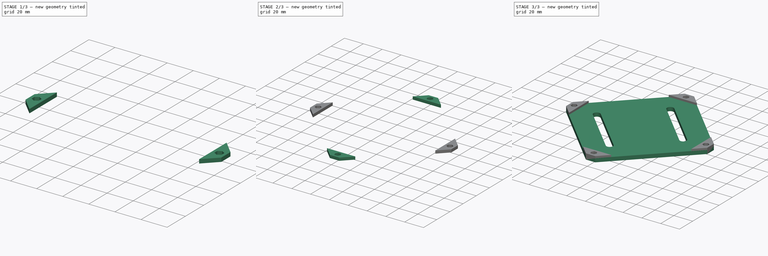
[diagram: build sequence overview — one tinted view per stage of 3, left to right]
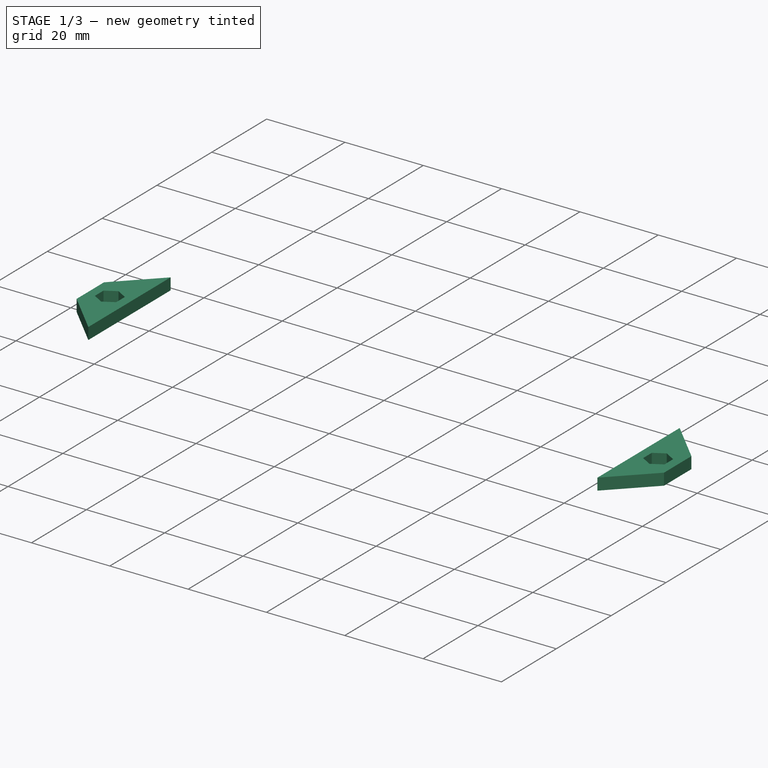
[diagram: stage 1 of 3 — iso view after this stage's code; geometry added in this stage tinted green]
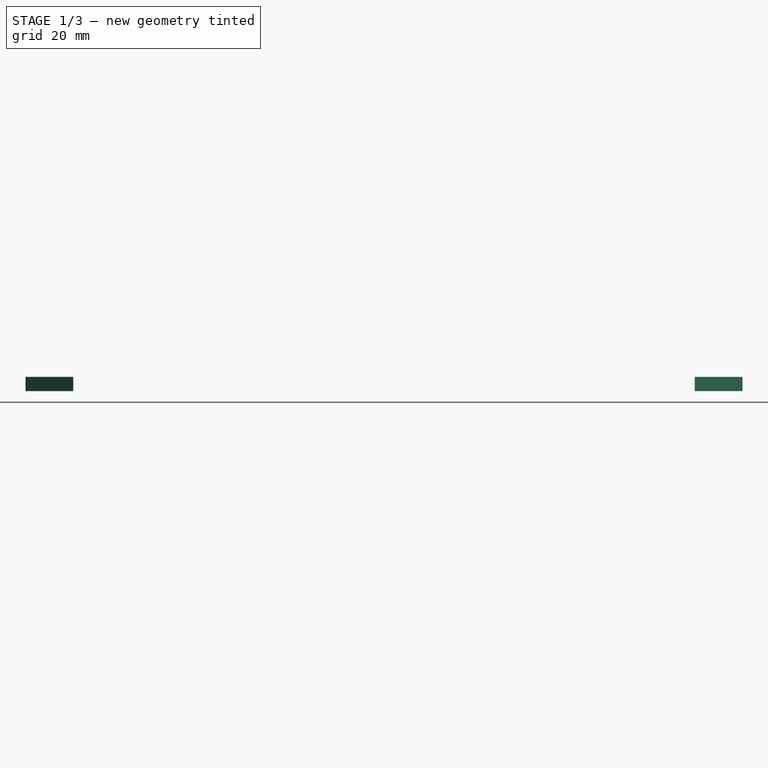
[diagram: stage 1 of 3 — front view after this stage's code; geometry added in this stage tinted green]
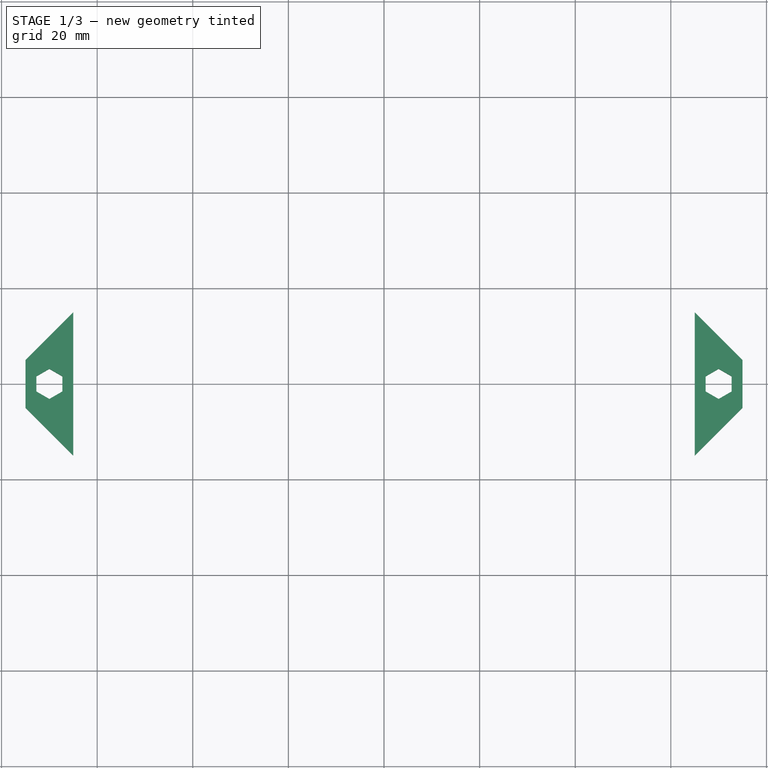
[diagram: stage 1 of 3 — top view after this stage's code; geometry added in this stage tinted green]
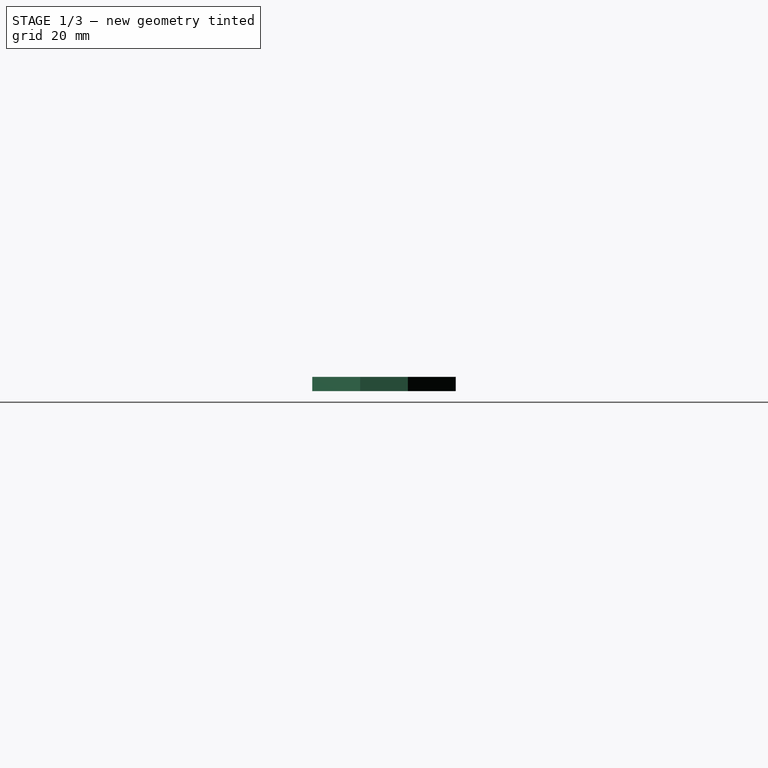
[diagram: stage 1 of 3 — right view after this stage's code; geometry added in this stage tinted green]
FCSTD DOCUMENT  (FreeCAD 0.16R6698 (Git))
Label: body-bottom-reversed
License: All rights reserved
LicenseURL: http://en.wikipedia.org/wiki/All_rights_reserved
objects: Part::Extrusion×5, Sketcher::SketchObject×2, Part::MultiFuse×1
note: 8 computed .brp shape members not serialized (recipe doc carries the construction recipe); baked Part::Feature solids carry a one-line shape summary decoded from their .brp

FEATURE [Part::Extrusion] Extrude003
  Base = -> Sketch001
  Dir = (0,0,3)
  Placement = pos=(-75,0,3) rot=(0,0,1;1.5708rad)
  Solid = true
FEATURE [Part::Extrusion] Extrude004
  Base = -> Sketch001
  Dir = (0,0,3)
  Placement = pos=(75,0,3) rot=(0,0,-1;1.5708rad)
  Solid = true
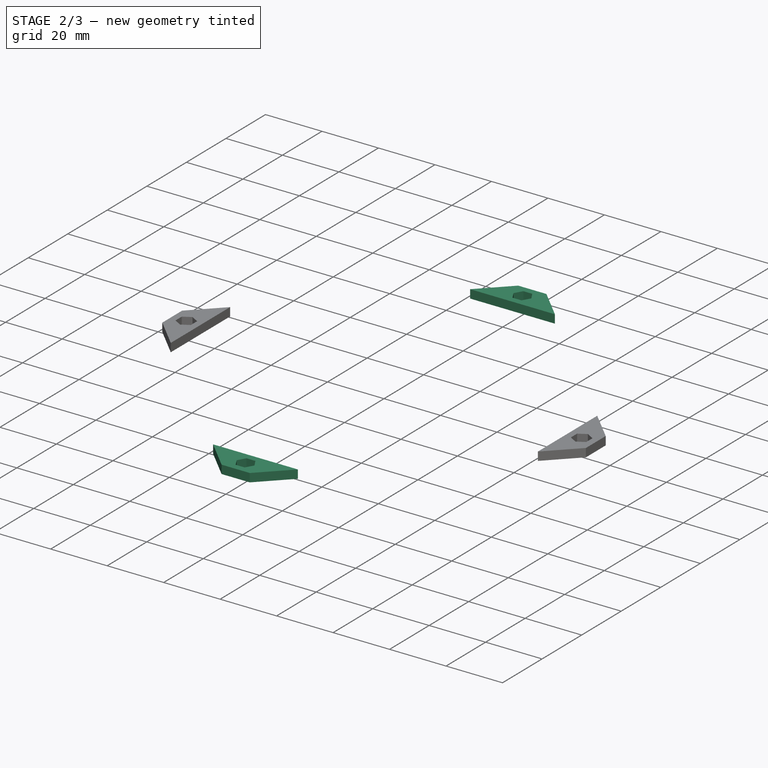
[diagram: stage 2 of 3 — iso view after this stage's code; geometry added in this stage tinted green]
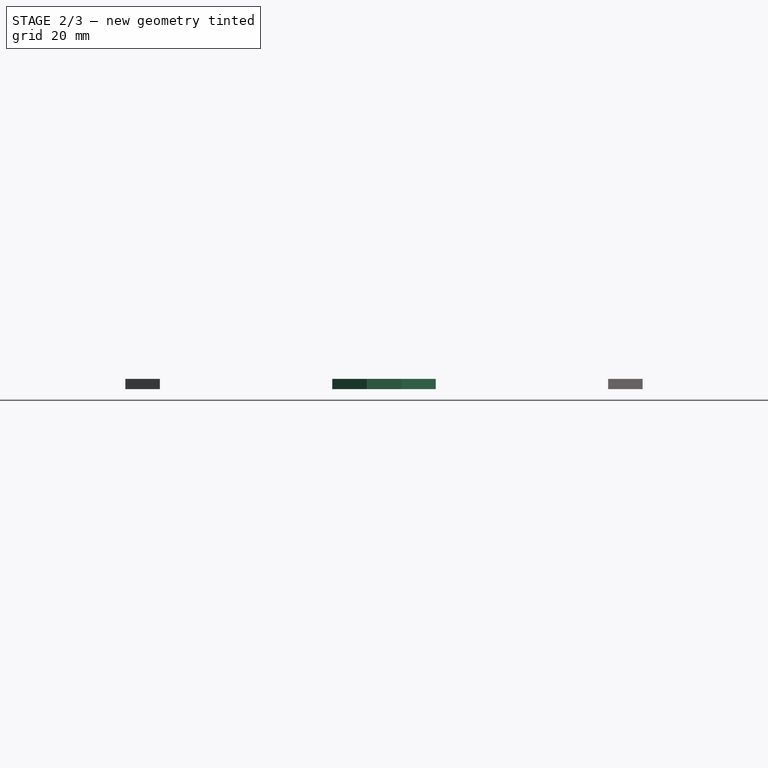
[diagram: stage 2 of 3 — front view after this stage's code; geometry added in this stage tinted green]
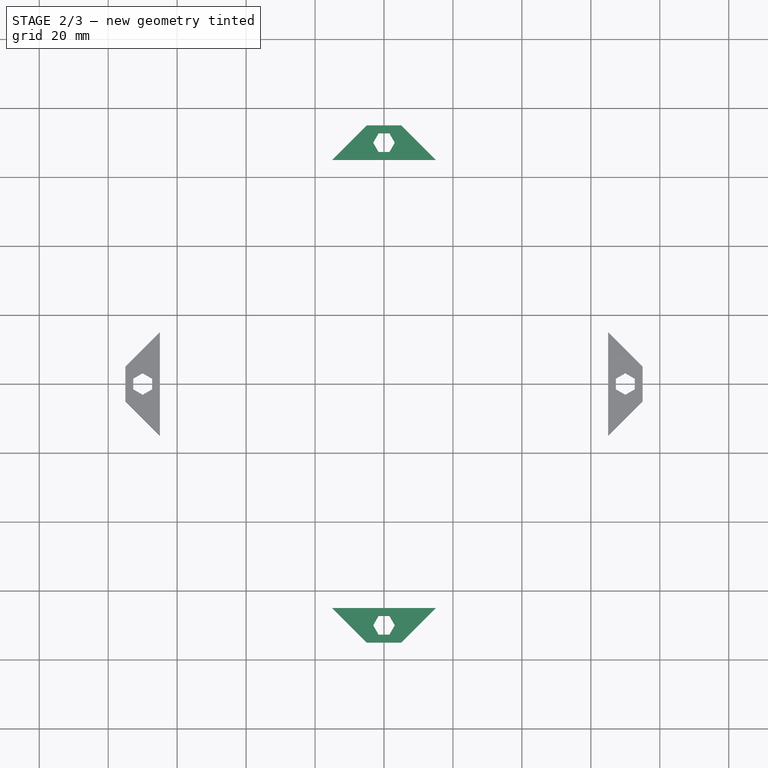
[diagram: stage 2 of 3 — top view after this stage's code; geometry added in this stage tinted green]
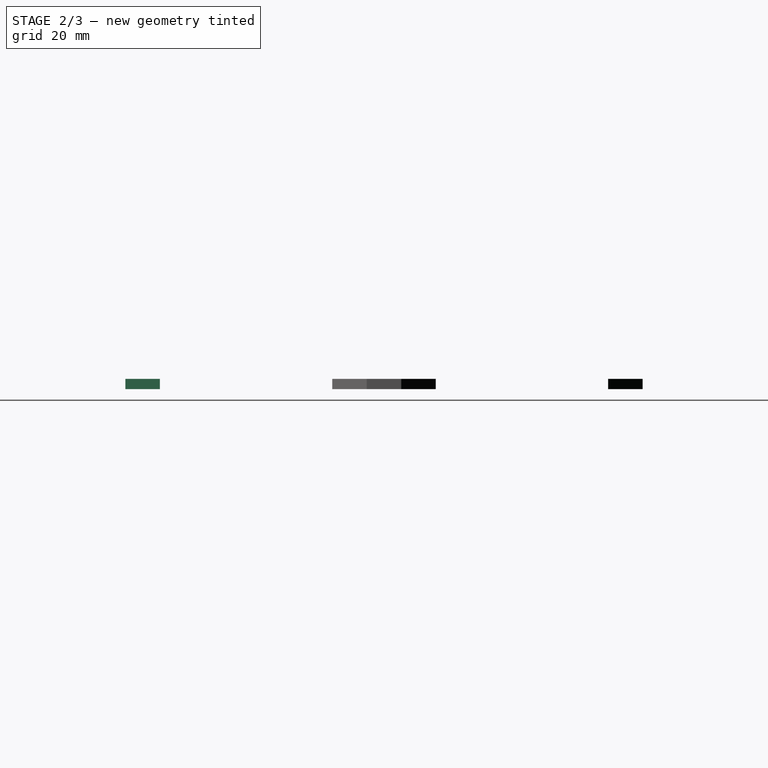
[diagram: stage 2 of 3 — right view after this stage's code; geometry added in this stage tinted green]
FEATURE [Sketcher::SketchObject] Sketch001
  sketch-geometry (11):
    g0: LineSegment StartX=-5 StartY=0 StartZ=0 EndX=5 EndY=0 EndZ=0
    g1: LineSegment StartX=5 StartY=0 StartZ=0 EndX=15 EndY=-10 EndZ=0
    g2: LineSegment StartX=15 StartY=-10 StartZ=0 EndX=-15 EndY=-10 EndZ=0
    g3: LineSegment StartX=-15 StartY=-10 StartZ=0 EndX=-5 EndY=0 EndZ=0
    g4: LineSegment StartX=1.575 StartY=-7.72798 StartZ=0 EndX=3.15 EndY=-5 EndZ=0
    g5: LineSegment StartX=3.15 StartY=-5 StartZ=0 EndX=1.575 EndY=-2.27202 EndZ=0
    g6: LineSegment StartX=1.575 StartY=-2.27202 StartZ=0 EndX=-1.575 EndY=-2.27202 EndZ=0
    g7: LineSegment StartX=-1.575 StartY=-2.27202 StartZ=0 EndX=-3.15 EndY=-5 EndZ=0
    g8: LineSegment StartX=-3.15 StartY=-5 StartZ=0 EndX=-1.575 EndY=-7.72798 EndZ=0
    g9: LineSegment StartX=-1.575 StartY=-7.72798 StartZ=0 EndX=1.575 EndY=-7.72798 EndZ=0
    g10: Circle [constr] CenterX=0 CenterY=-5 CenterZ=0 NormalX=0 NormalY=0 NormalZ=1 Radius=3.15
  constraints (29):
    c: Coincident(g0,g1)
    c: Coincident(g1,g2)
    c: Coincident(g2,g3)
    c: Coincident(g3,g0)
    c: Horizontal(g0)
    c: Horizontal(g2)
    c: PointOnObject(g0,g-1)
    c: Symmetric(g0,g0,g-2)
    c: Angle(g2,g3) = 0.785398
    c: Angle(g1,g2) = 0.785398
    c: DistanceX(g0,g0) = 10
    c: DistanceY(g1,g0) = 10
    c: Coincident(g4,g5)
    c: Coincident(g5,g6)
    c: Coincident(g6,g7)
    c: Coincident(g7,g8)
    c: Coincident(g8,g9)
    c: Coincident(g9,g4)
    c: Equal(g4, g5-g9) x5
    c: PointOnObject(g4,g10)
    c: PointOnObject(g5,g10)
    c: PointOnObject(g6,g10)
    c: PointOnObject(g7,g10)
    c: PointOnObject(g8,g10)
    c: PointOnObject(g9,g10)
    c: PointOnObject(g10,g-2)
    c: Horizontal(g9)
    c: DistanceY(g10,g-1) = 5
    c: Radius(g10) = 3.15
FEATURE [Part::Extrusion] Extrude001
  Base = -> Sketch001
  Dir = (0,0,3)
  Placement = pos=(0,75,3) rot=(0,0,1;0rad)
  Solid = true
FEATURE [Part::Extrusion] Extrude002
  Base = -> Sketch001
  Dir = (0,0,3)
  Placement = pos=(0,-75,3) rot=(0,0,1;3.14159rad)
  Solid = true
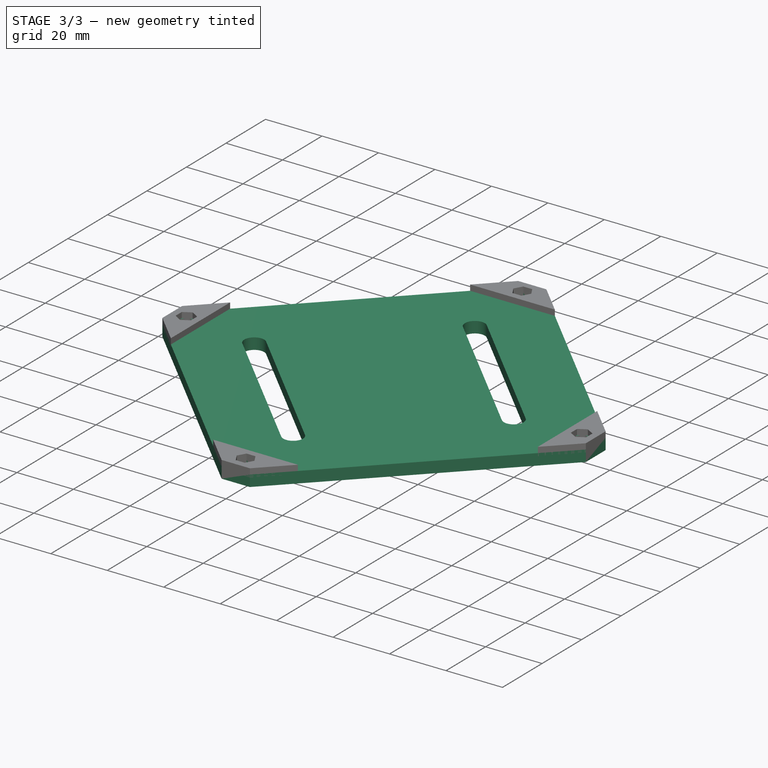
[diagram: stage 3 of 3 — iso view after this stage's code; geometry added in this stage tinted green]
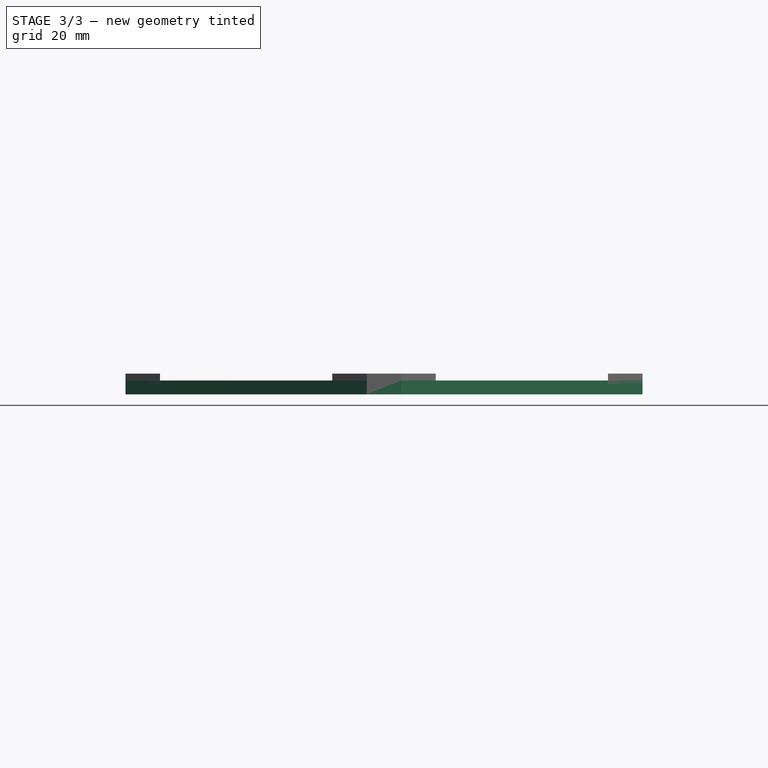
[diagram: stage 3 of 3 — front view after this stage's code; geometry added in this stage tinted green]
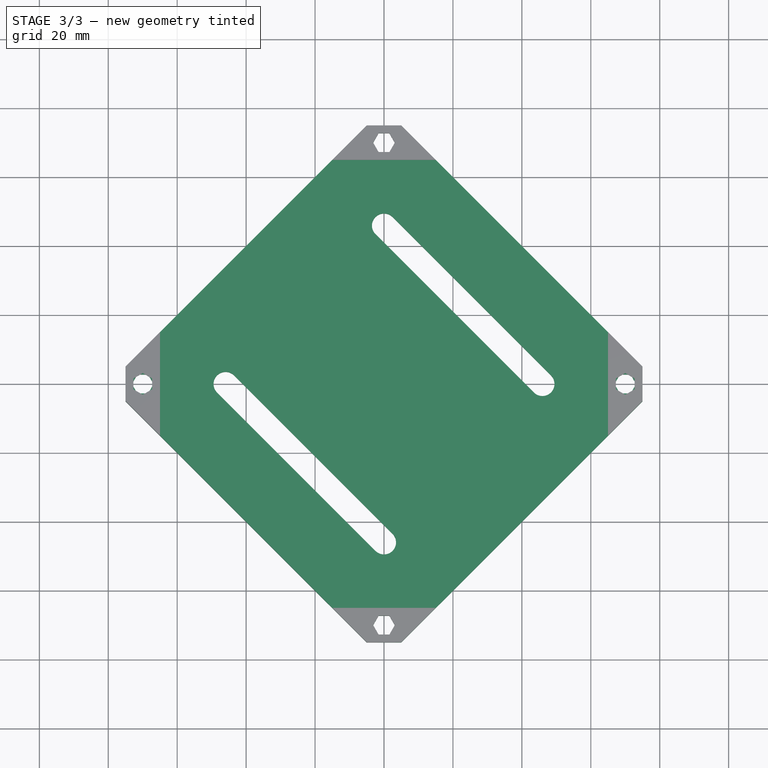
[diagram: stage 3 of 3 — top view after this stage's code; geometry added in this stage tinted green]
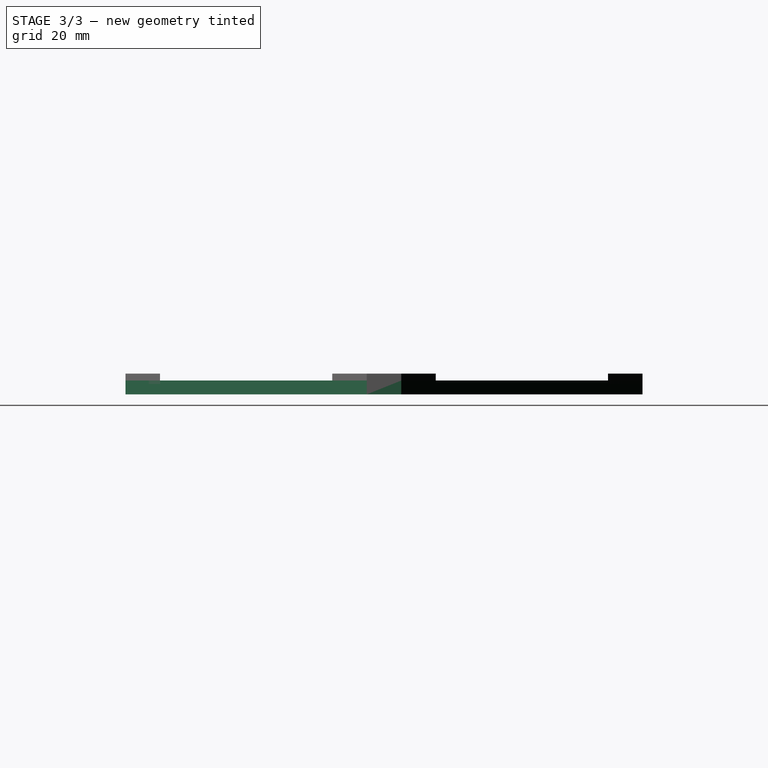
[diagram: stage 3 of 3 — right view after this stage's code; geometry added in this stage tinted green]
FEATURE [Sketcher::SketchObject] Sketch
  sketch-geometry (50):
    g0: Circle [constr] CenterX=0 CenterY=0 CenterZ=0 NormalX=0 NormalY=0 NormalZ=1 Radius=75.1665
    g1: LineSegment StartX=-5 StartY=75 StartZ=0 EndX=5 EndY=75 EndZ=0
    g2: LineSegment StartX=5 StartY=75 StartZ=0 EndX=75 EndY=5 EndZ=0
    g3: LineSegment StartX=75 StartY=5 StartZ=0 EndX=75 EndY=-5 EndZ=0
    g4: LineSegment StartX=75 StartY=-5 StartZ=0 EndX=5 EndY=-75 EndZ=0
    g5: LineSegment StartX=5 StartY=-75 StartZ=0 EndX=-5 EndY=-75 EndZ=0
    g6: LineSegment StartX=-5 StartY=-75 StartZ=0 EndX=-75 EndY=-5 EndZ=0
    g7: LineSegment StartX=-75 StartY=-5 StartZ=0 EndX=-75 EndY=5 EndZ=0
    g8: LineSegment StartX=-75 StartY=5 StartZ=0 EndX=-5 EndY=75 EndZ=0
    g9: Circle [constr] CenterX=0 CenterY=0 CenterZ=0 NormalX=0 NormalY=0 NormalZ=1 Radius=70
    g10: Circle [constr] CenterX=0 CenterY=70 CenterZ=0 NormalX=0 NormalY=0 NormalZ=1 Radius=3.15
    g11: Circle [constr] CenterX=-70 CenterY=0 CenterZ=0 NormalX=0 NormalY=0 NormalZ=1 Radius=3.15
    g12: Circle [constr] CenterX=70 CenterY=0 CenterZ=0 NormalX=0 NormalY=0 NormalZ=1 Radius=3.15
    g13: Circle [constr] CenterX=0 CenterY=-70 CenterZ=0 NormalX=0 NormalY=0 NormalZ=1 Radius=3.15
    g14: LineSegment [constr] StartX=-45.9619 StartY=0 StartZ=0 EndX=0 EndY=45.9619 EndZ=0
    g15: LineSegment [constr] StartX=0 StartY=45.9619 StartZ=0 EndX=45.9619 EndY=0 EndZ=0
    g16: LineSegment [constr] StartX=45.9619 StartY=0 StartZ=0 EndX=0 EndY=-45.9619 EndZ=0
    g17: LineSegment [constr] StartX=0 StartY=-45.9619 StartZ=0 EndX=-45.9619 EndY=0 EndZ=0
    g18: ArcOfCircle CenterX=-45.9619 CenterY=0 CenterZ=0 NormalX=0 NormalY=0 NormalZ=1 Radius=3.5 StartAngle=0.785398 EndAngle=3.92699
    g19: ArcOfCircle CenterX=0 CenterY=-45.9619 CenterZ=0 NormalX=0 NormalY=0 NormalZ=1 Radius=3.5 StartAngle=3.92699 EndAngle=7.06858
    g20: LineSegment StartX=-48.4368 StartY=-2.47487 StartZ=0 EndX=-2.47487 EndY=-48.4368 EndZ=0
    g21: LineSegment StartX=-43.4871 StartY=2.47487 StartZ=0 EndX=2.47487 EndY=-43.4871 EndZ=0
    g22: ArcOfCircle CenterX=0 CenterY=45.9619 CenterZ=0 NormalX=0 NormalY=0 NormalZ=1 Radius=3.5 StartAngle=0.785398 EndAngle=3.92699
    g23: ArcOfCircle CenterX=45.9619 CenterY=0 CenterZ=0 NormalX=0 NormalY=0 NormalZ=1 Radius=3.5 StartAngle=3.92699 EndAngle=7.06858
    g24: LineSegment StartX=-2.47487 StartY=43.4871 StartZ=0 EndX=43.4871 EndY=-2.47487 EndZ=0
    g25: LineSegment StartX=2.47487 StartY=48.4368 StartZ=0 EndX=48.4368 EndY=2.47487 EndZ=0
    g26: LineSegment StartX=-71.575 StartY=2.72798 StartZ=0 EndX=-68.425 EndY=2.72798 EndZ=0
    g27: LineSegment StartX=-68.425 StartY=2.72798 StartZ=0 EndX=-66.85 EndY=0 EndZ=0
    g28: LineSegment StartX=-66.85 StartY=0 StartZ=0 EndX=-68.425 EndY=-2.72798 EndZ=0
    g29: LineSegment StartX=-68.425 StartY=-2.72798 StartZ=0 EndX=-71.575 EndY=-2.72798 EndZ=0
    g30: LineSegment StartX=-71.575 StartY=-2.72798 StartZ=0 EndX=-73.15 EndY=0 EndZ=0
    g31: LineSegment StartX=-73.15 StartY=0 StartZ=0 EndX=-71.575 EndY=2.72798 EndZ=0
    g32: LineSegment StartX=-1.575 StartY=72.728 StartZ=0 EndX=1.575 EndY=72.728 EndZ=0
    g33: LineSegment StartX=1.575 StartY=72.728 StartZ=0 EndX=3.15 EndY=70 EndZ=0
    g34: LineSegment StartX=3.15 StartY=70 StartZ=0 EndX=1.575 EndY=67.272 EndZ=0
    g35: LineSegment StartX=1.575 StartY=67.272 StartZ=0 EndX=-1.575 EndY=67.272 EndZ=0
    g36: LineSegment StartX=-1.575 StartY=67.272 StartZ=0 EndX=-3.15 EndY=70 EndZ=0
    g37: LineSegment StartX=-3.15 StartY=70 StartZ=0 EndX=-1.575 EndY=72.728 EndZ=0
    g38: LineSegment StartX=68.425 StartY=2.72798 StartZ=0 EndX=71.575 EndY=2.72798 EndZ=0
    g39: LineSegment StartX=71.575 StartY=2.72798 StartZ=0 EndX=73.15 EndY=0 EndZ=0
    g40: LineSegment StartX=73.15 StartY=0 StartZ=0 EndX=71.575 EndY=-2.72798 EndZ=0
    g41: LineSegment StartX=71.575 StartY=-2.72798 StartZ=0 EndX=68.425 EndY=-2.72798 EndZ=0
    g42: LineSegment StartX=68.425 StartY=-2.72798 StartZ=0 EndX=66.85 EndY=0 EndZ=0
    g43: LineSegment StartX=66.85 StartY=0 StartZ=0 EndX=68.425 EndY=2.72798 EndZ=0
    g44: LineSegment StartX=-1.575 StartY=-67.272 StartZ=0 EndX=1.575 EndY=-67.272 EndZ=0
    g45: LineSegment StartX=1.575 StartY=-67.272 StartZ=0 EndX=3.15 EndY=-70 EndZ=0
    g46: LineSegment StartX=3.15 StartY=-70 StartZ=0 EndX=1.575 EndY=-72.728 EndZ=0
    g47: LineSegment StartX=1.575 StartY=-72.728 StartZ=0 EndX=-1.575 EndY=-72.728 EndZ=0
    g48: LineSegment StartX=-1.575 StartY=-72.728 StartZ=0 EndX=-3.15 EndY=-70 EndZ=0
    g49: LineSegment StartX=-3.15 StartY=-70 StartZ=0 EndX=-1.575 EndY=-67.272 EndZ=0
  constraints (141):
    c: Coincident(g0,g-1)
    c: PointOnObject(g1,g0)
    c: PointOnObject(g1,g0)
    c: Horizontal(g1)
    c: Coincident(g1,g2)
    c: PointOnObject(g2,g0)
    c: Coincident(g2,g3)
    c: PointOnObject(g3,g0)
    c: Vertical(g3)
    c: Coincident(g3,g4)
    c: PointOnObject(g4,g0)
    c: Coincident(g4,g5)
    c: PointOnObject(g5,g0)
    c: Horizontal(g5)
    c: Coincident(g5,g6)
    c: PointOnObject(g6,g0)
    c: Coincident(g6,g7)
    c: PointOnObject(g7,g0)
    c: Vertical(g7)
    c: Coincident(g7,g8)
    c: Coincident(g8,g1)
    c: Equal(g7,g5)
    c: Equal(g5,g3)
    c: Equal(g3,g1)
    c: Distance(g5) = 10
    c: DistanceX(g6,g3) = 150
    c: Coincident(g9,g-1)
    c: Radius(g9) = 70
    c: PointOnObject(g10,g9)
    c: PointOnObject(g11,g9)
    c: PointOnObject(g13,g9)
    c: PointOnObject(g11,g-1)
    c: PointOnObject(g10,g-2)
    c: PointOnObject(g13,g-2)
    c: PointOnObject(g12,g9)
    c: PointOnObject(g12,g-1)
    c: Radius(g11) = 3.15
    c: Equal(g11,g13)
    c: Equal(g11,g12)
    c: Equal(g11,g10)
    c: Coincident(g14,g15)
    c: Coincident(g15,g16)
    c: Coincident(g16,g17)
    c: Coincident(g17,g14)
    c: Equal(g17,g16)
    c: Equal(g16,g15)
    c: Equal(g15,g14)
    c: PointOnObject(g14,g-1)
    c: PointOnObject(g15,g-1)
    c: PointOnObject(g14,g-2)
    c: Angle(g17,g14) = 1.5708
    c: Distance(g17) = 65
    c: Tangent(g18,g21) = 1.5708
    c: Tangent(g18,g20) = -1.5708
    c: Tangent(g20,g19) = -1.5708
    c: Tangent(g21,g19) = 1.5708
    c: Equal(g18,g19)
    c: Coincident(g18,g14)
    c: Coincident(g19,g16)
    c: Radius(g18) = 3.5
    c: Tangent(g22,g25) = 1.5708
    c: Tangent(g22,g24) = -1.5708
    c: Tangent(g24,g23) = -1.5708
    c: Tangent(g25,g23) = 1.5708
    c: Equal(g22,g23)
    c: Coincident(g22,g14)
    c: Coincident(g23,g15)
    c: Equal(g22,g18)
    c: PointOnObject(g26,g11)
    c: PointOnObject(g26,g11)
    c: Coincident(g26,g27)
    c: PointOnObject(g27,g11)
    c: Coincident(g27,g28)
    c: PointOnObject(g28,g11)
    c: Coincident(g28,g29)
    c: PointOnObject(g29,g11)
    c: Horizontal(g29)
    c: Coincident(g29,g30)
    c: PointOnObject(g30,g11)
    c: Coincident(g30,g31)
    c: Equal(g26,g31)
    c: Equal(g31,g30)
    c: Equal(g30,g29)
    c: Equal(g29,g28)
    c: Equal(g28,g27)
    c: Coincident(g31,g26)
    c: PointOnObject(g32,g10)
    c: PointOnObject(g32,g10)
    c: Horizontal(g32)
    c: Coincident(g32,g33)
    c: PointOnObject(g33,g10)
    c: Coincident(g33,g34)
    c: PointOnObject(g34,g10)
    c: Coincident(g34,g35)
    c: PointOnObject(g36,g10)
    c: PointOnObject(g36,g10)
    c: Coincident(g36,g37)
    c: Coincident(g37,g32)
    c: PointOnObject(g35,g10)
    c: Coincident(g36,g35)
    c: Equal(g37,g36)
    c: Equal(g36,g35)
    c: Equal(g35,g34)
    c: Equal(g34,g33)
    c: Equal(g33,g32)
    c: PointOnObject(g38,g12)
    c: PointOnObject(g38,g12)
    c: Horizontal(g38)
    c: Coincident(g38,g39)
    c: PointOnObject(g39,g12)
    c: Coincident(g39,g40)
    c: PointOnObject(g40,g12)
    c: Coincident(g40,g41)
    c: PointOnObject(g41,g12)
    c: Coincident(g41,g42)
    c: PointOnObject(g42,g12)
    c: Coincident(g42,g43)
    c: Coincident(g43,g38)
    c: Equal(g43,g42)
    c: Equal(g42,g41)
    c: Equal(g41,g40)
    c: Equal(g40,g39)
    c: Equal(g39,g38)
    c: PointOnObject(g44,g13)
    c: PointOnObject(g44,g13)
    c: Horizontal(g44)
    c: Coincident(g44,g45)
    c: PointOnObject(g45,g13)
    c: Coincident(g45,g46)
    c: PointOnObject(g46,g13)
    c: Coincident(g46,g47)
    c: PointOnObject(g47,g13)
    c: Coincident(g47,g48)
    c: Coincident(g48,g49)
    c: Coincident(g49,g44)
    c: Equal(g49,g44)
    c: Equal(g44,g45)
    c: Equal(g45,g46)
    c: Equal(g46,g47)
    c: Equal(g47,g48)
    c: PointOnObject(g48,g13)
FEATURE [Part::Extrusion] Extrude
  Base = -> Sketch
  Dir = (0,0,4)
  Solid = true
FEATURE [Part::MultiFuse] Fusion  label="NutPads"
  Shapes = -> [Extrude001,Extrude004,Extrude003,Extrude002]
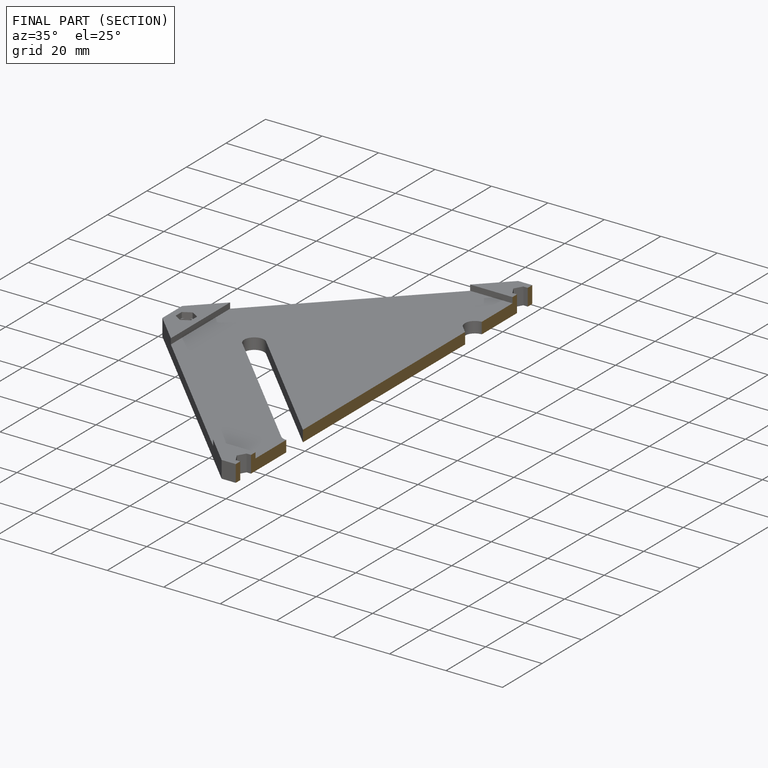
[diagram: finished part — half-section view (interior)]
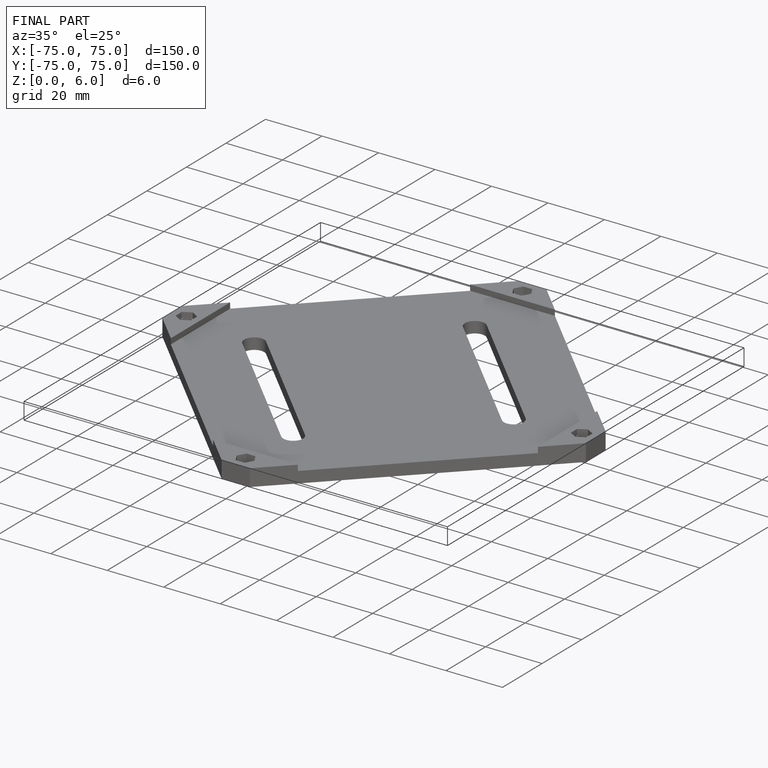
[diagram: finished part — iso view with bounding-box wireframe]
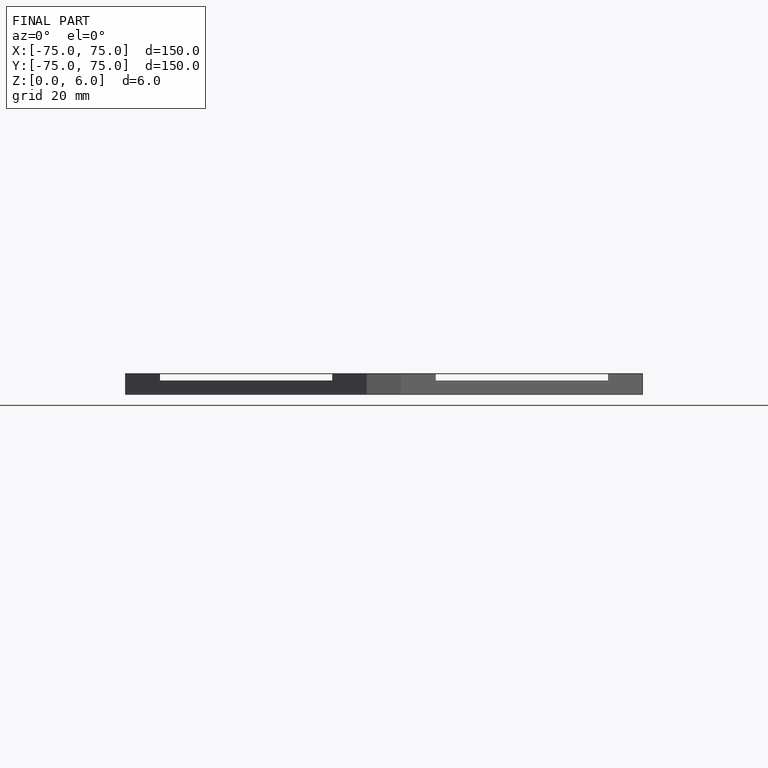
[diagram: finished part — front view with bounding-box wireframe]
